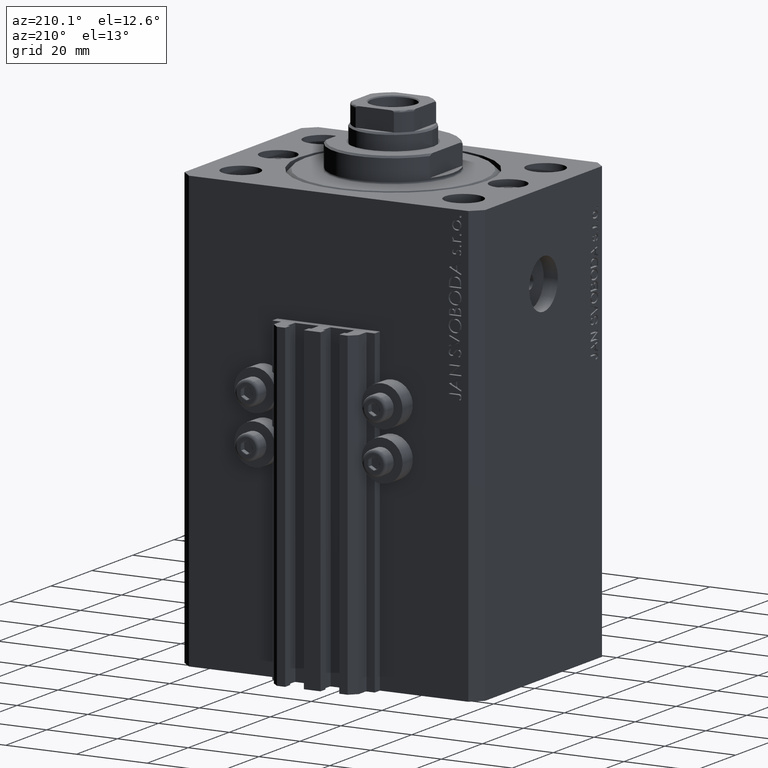
[diagram: clean part render]
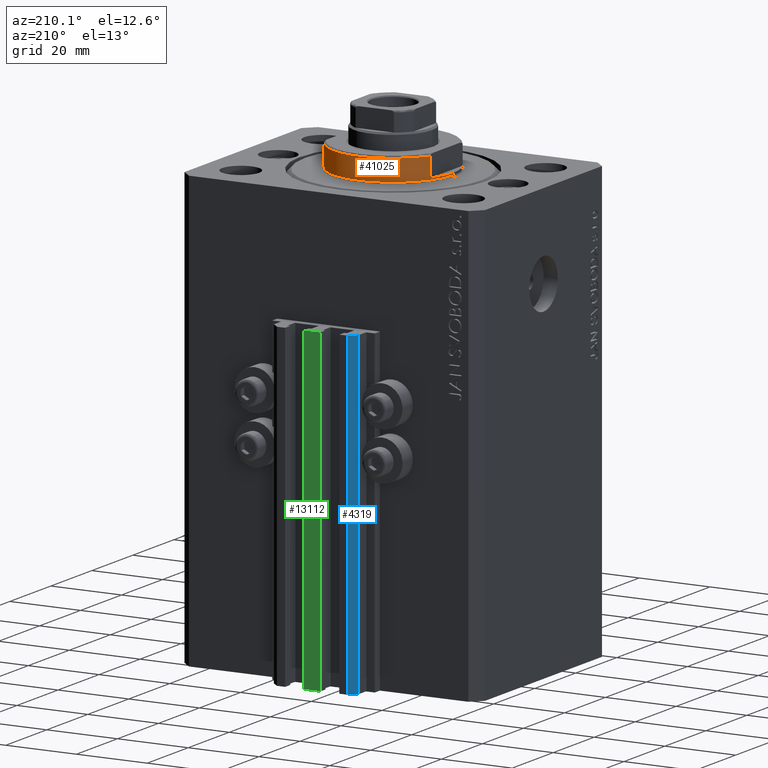
[diagram: same view with three faces highlighted in distinct colors, each labeled with its STEP entity id]
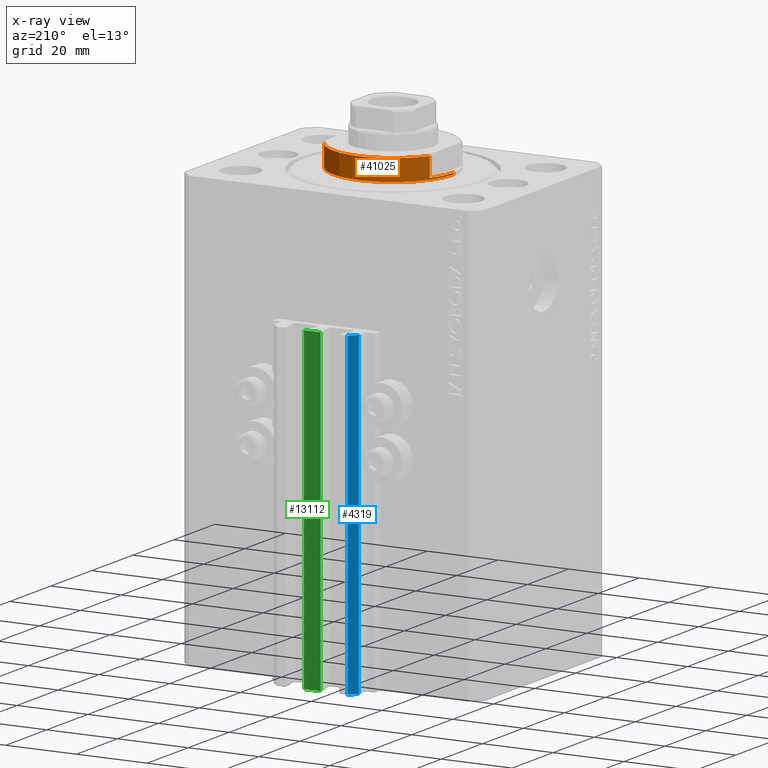
[diagram: x-ray of the same camera — body ghosted, the three highlighted faces saturated]
A machine part, auxiliary view with three faces highlighted in distinct colors.
The next image is the same camera in x-ray (body ghosted, the three faces saturated) — at least one of them is partly hidden behind the body in this view.
Their STEP definitions:

[orange] entity #41025 — the highlighted cylindrical surface (partial cylindrical patch) has radius 17 mm, axis along (0, 0, -1).
#892 = ORIENTED_EDGE ( 'NONE', *, *, #28771, .F. ) ;
#1443 = EDGE_CURVE ( 'NONE', #34474, #16441, #12111, .T. ) ;
#1865 = ORIENTED_EDGE ( 'NONE', *, *, #18239, .T. ) ;
#3643 = CARTESIAN_POINT ( 'NONE',  ( 14.99999999999999645, 8.000000000000003553, -1.000000000000000000 ) ) ;
#3696 = LINE ( 'NONE', #36880, #17233 ) ;
#4409 = ORIENTED_EDGE ( 'NONE', *, *, #20754, .T. ) ;
#5677 = AXIS2_PLACEMENT_3D ( 'NONE', #14367, #43484, #5988 ) ;
#5988 = DIRECTION ( 'NONE',  ( -1.000000000000000000, 0.000000000000000000, 0.000000000000000000 ) ) ;
#7779 = VECTOR ( 'NONE', #31797, 1000.000000000000000 ) ;
#7950 = DIRECTION ( 'NONE',  ( -1.000000000000000000, 0.000000000000000000, 0.000000000000000000 ) ) ;
#8604 = CARTESIAN_POINT ( 'NONE',  ( -17.00000000000000000, 2.081899558550500280E-15, -1.000000000000000000 ) ) ;
#8794 = CARTESIAN_POINT ( 'NONE',  ( -17.00000000000000000, 2.081899558550500280E-15, -0.4999999999999995559 ) ) ;
#9133 = LINE ( 'NONE', #31557, #7779 ) ;
#10089 = DIRECTION ( 'NONE',  ( 1.000000000000000000, 0.000000000000000000, 0.000000000000000000 ) ) ;
#10326 = DIRECTION ( 'NONE',  ( -0.000000000000000000, -0.000000000000000000, -1.000000000000000000 ) ) ;
#11238 = DIRECTION ( 'NONE',  ( -0.000000000000000000, -0.000000000000000000, 1.000000000000000000 ) ) ;
#11295 = AXIS2_PLACEMENT_3D ( 'NONE', #17946, #14361, #25343 ) ;
#11472 = LINE ( 'NONE', #15758, #39302 ) ;
#11569 = DIRECTION ( 'NONE',  ( -0.000000000000000000, -0.000000000000000000, 1.000000000000000000 ) ) ;
#12111 = CIRCLE ( 'NONE', #43354, 17.00000000000000000 ) ;
#14361 = DIRECTION ( 'NONE',  ( 0.000000000000000000, 0.000000000000000000, -1.000000000000000000 ) ) ;
#14367 = CARTESIAN_POINT ( 'NONE',  ( 0.000000000000000000, 0.000000000000000000, -6.500000000000013323 ) ) ;
#14395 = VERTEX_POINT ( 'NONE', #14622 ) ;
#14622 = CARTESIAN_POINT ( 'NONE',  ( -14.99999999999999645, 8.000000000000003553, -1.000000000000000000 ) ) ;
#14996 = EDGE_CURVE ( 'NONE', #26714, #16441, #9133, .T. ) ;
#15026 = FACE_OUTER_BOUND ( 'NONE', #44232, .T. ) ;
#15758 = CARTESIAN_POINT ( 'NONE',  ( -17.00000000000000000, 2.081899558550500280E-15, -7.000000000000000000 ) ) ;
#15997 = CARTESIAN_POINT ( 'NONE',  ( 17.00000000000000000, 0.000000000000000000, -0.4999999999999995559 ) ) ;
#16441 = VERTEX_POINT ( 'NONE', #15997 ) ;
#16738 = EDGE_CURVE ( 'NONE', #34458, #14395, #18255, .T. ) ;
#17233 = VECTOR ( 'NONE', #11569, 1000.000000000000000 ) ;
#17946 = CARTESIAN_POINT ( 'NONE',  ( 0.000000000000000000, 0.000000000000000000, -1.000000000000000000 ) ) ;
#18114 = AXIS2_PLACEMENT_3D ( 'NONE', #44481, #34195, #7950 ) ;
#18239 = EDGE_CURVE ( 'NONE', #30361, #34458, #46067, .T. ) ;
#18255 = LINE ( 'NONE', #39011, #37601 ) ;
#18840 = CARTESIAN_POINT ( 'NONE',  ( 0.000000000000000000, 0.000000000000000000, -7.000000000000000000 ) ) ;
#20754 = EDGE_CURVE ( 'NONE', #22502, #34474, #11472, .T. ) ;
#21958 = CYLINDRICAL_SURFACE ( 'NONE', #30352, 17.00000000000000000 ) ;
#22502 = VERTEX_POINT ( 'NONE', #8604 ) ;
#25343 = DIRECTION ( 'NONE',  ( -1.000000000000000000, 0.000000000000000000, 0.000000000000000000 ) ) ;
#26714 = VERTEX_POINT ( 'NONE', #37246 ) ;
#28744 = DIRECTION ( 'NONE',  ( -0.000000000000000000, -0.000000000000000000, 1.000000000000000000 ) ) ;
#28771 = EDGE_CURVE ( 'NONE', #33828, #26714, #36448, .T. ) ;
#29814 = DIRECTION ( 'NONE',  ( -0.000000000000000000, -0.000000000000000000, 1.000000000000000000 ) ) ;
#30266 = CIRCLE ( 'NONE', #18114, 17.00000000000000000 ) ;
#30352 = AXIS2_PLACEMENT_3D ( 'NONE', #18840, #29814, #40574 ) ;
#30361 = VERTEX_POINT ( 'NONE', #41728 ) ;
#31557 = CARTESIAN_POINT ( 'NONE',  ( 17.00000000000000000, 0.000000000000000000, -7.000000000000000000 ) ) ;
#31797 = DIRECTION ( 'NONE',  ( -0.000000000000000000, -0.000000000000000000, 1.000000000000000000 ) ) ;
#33828 = VERTEX_POINT ( 'NONE', #3643 ) ;
#33834 = ORIENTED_EDGE ( 'NONE', *, *, #46103, .F. ) ;
#34195 = DIRECTION ( 'NONE',  ( 0.000000000000000000, 0.000000000000000000, -1.000000000000000000 ) ) ;
#34458 = VERTEX_POINT ( 'NONE', #44871 ) ;
#34474 = VERTEX_POINT ( 'NONE', #8794 ) ;
#36448 = CIRCLE ( 'NONE', #11295, 17.00000000000000000 ) ;
#36880 = CARTESIAN_POINT ( 'NONE',  ( 15.00000000000000000, 8.000000000000001776, -7.000000000000000000 ) ) ;
#37246 = CARTESIAN_POINT ( 'NONE',  ( 17.00000000000000000, 0.000000000000000000, -1.000000000000000000 ) ) ;
#37601 = VECTOR ( 'NONE', #28744, 1000.000000000000000 ) ;
#38578 = ORIENTED_EDGE ( 'NONE', *, *, #16738, .T. ) ;
#39011 = CARTESIAN_POINT ( 'NONE',  ( -15.00000000000000000, 8.000000000000001776, -7.000000000000000000 ) ) ;
#39302 = VECTOR ( 'NONE', #11238, 1000.000000000000000 ) ;
#40574 = DIRECTION ( 'NONE',  ( 1.000000000000000000, 0.000000000000000000, 0.000000000000000000 ) ) ;
#41025 = ADVANCED_FACE ( 'NONE', ( #15026 ), #21958, .T. ) ;
#41728 = CARTESIAN_POINT ( 'NONE',  ( 15.00000000000000000, 8.000000000000001776, -6.500000000000013323 ) ) ;
#42155 = ORIENTED_EDGE ( 'NONE', *, *, #1443, .T. ) ;
#42766 = EDGE_CURVE ( 'NONE', #30361, #33828, #3696, .T. ) ;
#42792 = CARTESIAN_POINT ( 'NONE',  ( 0.000000000000000000, 0.000000000000000000, -0.4999999999999995559 ) ) ;
#43088 = ORIENTED_EDGE ( 'NONE', *, *, #42766, .F. ) ;
#43354 = AXIS2_PLACEMENT_3D ( 'NONE', #42792, #10326, #10089 ) ;
#43484 = DIRECTION ( 'NONE',  ( 0.000000000000000000, 0.000000000000000000, 1.000000000000000000 ) ) ;
#44232 = EDGE_LOOP ( 'NONE', ( #33834, #4409, #42155, #46851, #892, #43088, #1865, #38578 ) ) ;
#44481 = CARTESIAN_POINT ( 'NONE',  ( 0.000000000000000000, 0.000000000000000000, -1.000000000000000000 ) ) ;
#44871 = CARTESIAN_POINT ( 'NONE',  ( -15.00000000000000000, 8.000000000000001776, -6.500000000000013323 ) ) ;
#46067 = CIRCLE ( 'NONE', #5677, 17.00000000000000000 ) ;
#46103 = EDGE_CURVE ( 'NONE', #22502, #14395, #30266, .T. ) ;
#46851 = ORIENTED_EDGE ( 'NONE', *, *, #14996, .F. ) ;

[blue] entity #4319 — the highlighted planar face has unit normal (-0.7071, 0.7071, 0).
#1776 = CARTESIAN_POINT ( 'NONE',  ( -10.00000000000000000, 39.49999999999999289, -123.0000000000000000 ) ) ;
#2382 = CARTESIAN_POINT ( 'NONE',  ( -10.00000000000000000, 39.49999999999999289, -123.0000000000000000 ) ) ;
#3906 = DIRECTION ( 'NONE',  ( 0.000000000000000000, 0.000000000000000000, 1.000000000000000000 ) ) ;
#4319 = ADVANCED_FACE ( 'NONE', ( #35080 ), #24586, .T. ) ;
#5274 = AXIS2_PLACEMENT_3D ( 'NONE', #2382, #6681, #21002 ) ;
#5465 = EDGE_CURVE ( 'NONE', #20010, #25018, #34948, .T. ) ;
#6332 = CARTESIAN_POINT ( 'NONE',  ( -12.00000000000000000, 37.49999999999999289, -123.0000000000000000 ) ) ;
#6488 = ORIENTED_EDGE ( 'NONE', *, *, #7268, .T. ) ;
#6681 = DIRECTION ( 'NONE',  ( -0.7071067811865479058, 0.7071067811865472397, 0.000000000000000000 ) ) ;
#7268 = EDGE_CURVE ( 'NONE', #25018, #9900, #25623, .T. ) ;
#9900 = VERTEX_POINT ( 'NONE', #41454 ) ;
#14062 = CARTESIAN_POINT ( 'NONE',  ( -10.00000000000000000, 39.49999999999999289, -33.00000000000000000 ) ) ;
#14571 = VECTOR ( 'NONE', #3906, 1000.000000000000000 ) ;
#15247 = VECTOR ( 'NONE', #38535, 999.9999999999998863 ) ;
#16617 = ORIENTED_EDGE ( 'NONE', *, *, #46796, .F. ) ;
#17334 = VECTOR ( 'NONE', #32913, 999.9999999999998863 ) ;
#17515 = CARTESIAN_POINT ( 'NONE',  ( -12.00000000000000000, 37.49999999999999289, -123.0000000000000000 ) ) ;
#20010 = VERTEX_POINT ( 'NONE', #37747 ) ;
#21002 = DIRECTION ( 'NONE',  ( -0.7071067811865472397, -0.7071067811865479058, 0.000000000000000000 ) ) ;
#23644 = EDGE_CURVE ( 'NONE', #20010, #44394, #43580, .T. ) ;
#24586 = PLANE ( 'NONE',  #5274 ) ;
#25018 = VERTEX_POINT ( 'NONE', #6332 ) ;
#25512 = CARTESIAN_POINT ( 'NONE',  ( -10.00000000000000000, 39.49999999999999289, -33.00000000000000000 ) ) ;
#25623 = LINE ( 'NONE', #17515, #14571 ) ;
#26356 = VECTOR ( 'NONE', #36180, 1000.000000000000000 ) ;
#32913 = DIRECTION ( 'NONE',  ( -0.7071067811865472397, -0.7071067811865479058, 0.000000000000000000 ) ) ;
#34948 = LINE ( 'NONE', #1776, #15247 ) ;
#35080 = FACE_OUTER_BOUND ( 'NONE', #37975, .T. ) ;
#36180 = DIRECTION ( 'NONE',  ( 0.000000000000000000, 0.000000000000000000, 1.000000000000000000 ) ) ;
#37747 = CARTESIAN_POINT ( 'NONE',  ( -10.00000000000000000, 39.49999999999999289, -123.0000000000000000 ) ) ;
#37975 = EDGE_LOOP ( 'NONE', ( #16617, #38558, #45960, #6488 ) ) ;
#38535 = DIRECTION ( 'NONE',  ( -0.7071067811865472397, -0.7071067811865479058, 0.000000000000000000 ) ) ;
#38558 = ORIENTED_EDGE ( 'NONE', *, *, #23644, .F. ) ;
#39775 = CARTESIAN_POINT ( 'NONE',  ( -10.00000000000000000, 39.49999999999999289, -123.0000000000000000 ) ) ;
#41454 = CARTESIAN_POINT ( 'NONE',  ( -12.00000000000000000, 37.49999999999999289, -33.00000000000000000 ) ) ;
#43580 = LINE ( 'NONE', #39775, #26356 ) ;
#44394 = VERTEX_POINT ( 'NONE', #14062 ) ;
#45456 = LINE ( 'NONE', #25512, #17334 ) ;
#45960 = ORIENTED_EDGE ( 'NONE', *, *, #5465, .T. ) ;
#46796 = EDGE_CURVE ( 'NONE', #44394, #9900, #45456, .T. ) ;

[green] entity #13112 — the highlighted planar face has unit normal (0, -1, 0).
#1455 = ORIENTED_EDGE ( 'NONE', *, *, #22512, .F. ) ;
#1932 = LINE ( 'NONE', #23446, #44687 ) ;
#2728 = CARTESIAN_POINT ( 'NONE',  ( -2.350000000000003642, 39.50000000000000711, -123.0000000000000000 ) ) ;
#5004 = DIRECTION ( 'NONE',  ( 1.000000000000000000, 0.000000000000000000, 0.000000000000000000 ) ) ;
#5126 = CARTESIAN_POINT ( 'NONE',  ( -2.350000000000003642, 39.50000000000000711, -123.0000000000000000 ) ) ;
#5355 = DIRECTION ( 'NONE',  ( 0.000000000000000000, -0.000000000000000000, -1.000000000000000000 ) ) ;
#9862 = LINE ( 'NONE', #24422, #26726 ) ;
#10744 = EDGE_LOOP ( 'NONE', ( #28232, #46489, #1455, #26305 ) ) ;
#12073 = PLANE ( 'NONE',  #16894 ) ;
#13112 = ADVANCED_FACE ( 'NONE', ( #16810 ), #12073, .F. ) ;
#14033 = VERTEX_POINT ( 'NONE', #43307 ) ;
#14869 = VERTEX_POINT ( 'NONE', #2728 ) ;
#15930 = CARTESIAN_POINT ( 'NONE',  ( -2.350000000000003642, 39.50000000000000711, -33.00000000000000000 ) ) ;
#16810 = FACE_OUTER_BOUND ( 'NONE', #10744, .T. ) ;
#16894 = AXIS2_PLACEMENT_3D ( 'NONE', #5126, #20154, #5355 ) ;
#18731 = VECTOR ( 'NONE', #5004, 1000.000000000000000 ) ;
#19731 = DIRECTION ( 'NONE',  ( 1.000000000000000000, 0.000000000000000000, 0.000000000000000000 ) ) ;
#20154 = DIRECTION ( 'NONE',  ( 0.000000000000000000, -1.000000000000000000, 0.000000000000000000 ) ) ;
#22512 = EDGE_CURVE ( 'NONE', #14869, #14033, #23163, .T. ) ;
#23163 = LINE ( 'NONE', #37729, #18731 ) ;
#23324 = CARTESIAN_POINT ( 'NONE',  ( -2.350000000000003642, 39.50000000000000711, -33.00000000000000000 ) ) ;
#23446 = CARTESIAN_POINT ( 'NONE',  ( 2.349999999999999645, 39.50000000000000711, -123.0000000000000000 ) ) ;
#24422 = CARTESIAN_POINT ( 'NONE',  ( -2.350000000000003642, 39.50000000000000711, -123.0000000000000000 ) ) ;
#26305 = ORIENTED_EDGE ( 'NONE', *, *, #38086, .T. ) ;
#26726 = VECTOR ( 'NONE', #38999, 1000.000000000000000 ) ;
#27262 = DIRECTION ( 'NONE',  ( 0.000000000000000000, 0.000000000000000000, 1.000000000000000000 ) ) ;
#28232 = ORIENTED_EDGE ( 'NONE', *, *, #35718, .T. ) ;
#29837 = VECTOR ( 'NONE', #19731, 1000.000000000000000 ) ;
#30255 = LINE ( 'NONE', #15930, #29837 ) ;
#34593 = CARTESIAN_POINT ( 'NONE',  ( 2.349999999999999645, 39.50000000000000711, -33.00000000000000000 ) ) ;
#35718 = EDGE_CURVE ( 'NONE', #43090, #38230, #30255, .T. ) ;
#37729 = CARTESIAN_POINT ( 'NONE',  ( -2.350000000000003642, 39.50000000000000711, -123.0000000000000000 ) ) ;
#38086 = EDGE_CURVE ( 'NONE', #14869, #43090, #9862, .T. ) ;
#38230 = VERTEX_POINT ( 'NONE', #34593 ) ;
#38999 = DIRECTION ( 'NONE',  ( 0.000000000000000000, 0.000000000000000000, 1.000000000000000000 ) ) ;
#43090 = VERTEX_POINT ( 'NONE', #23324 ) ;
#43307 = CARTESIAN_POINT ( 'NONE',  ( 2.349999999999999645, 39.50000000000000711, -123.0000000000000000 ) ) ;
#43310 = EDGE_CURVE ( 'NONE', #14033, #38230, #1932, .T. ) ;
#44687 = VECTOR ( 'NONE', #27262, 1000.000000000000000 ) ;
#46489 = ORIENTED_EDGE ( 'NONE', *, *, #43310, .F. ) ;